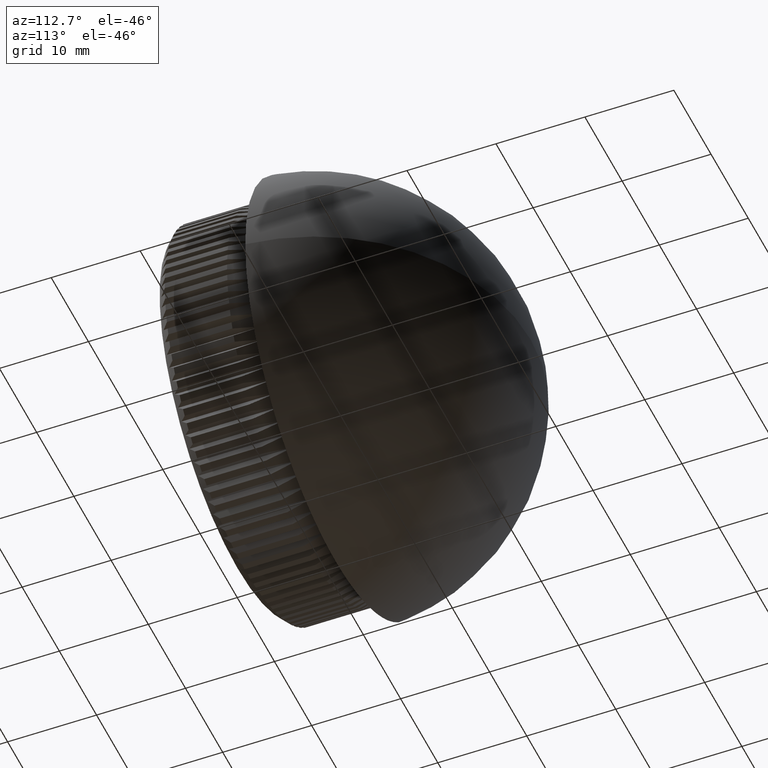
[diagram: clean part render]
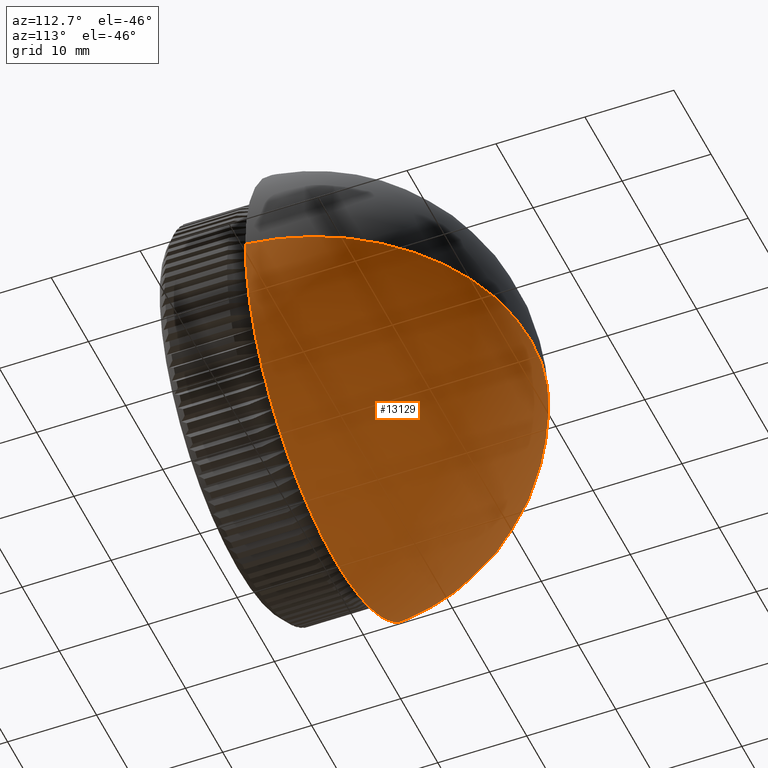
[diagram: same view with one face highlighted and labeled with its STEP entity id]
A machine part, auxiliary view. The second image highlights one B-rep face of the part: STEP entity #13129.
In plain terms, the highlighted spherical surface has radius 24.2551 mm.
Its self-contained STEP definition (entity closure, byte-faithful):
#1187 = CARTESIAN_POINT ( 'NONE',  ( 0.0000000000000000000, 8.744943181818182900, 0.0000000000000000000 ) ) ;
#1738 = ORIENTED_EDGE ( 'NONE', *, *, #23153, .F. ) ;
#2267 = CARTESIAN_POINT ( 'NONE',  ( 24.14999999999999900, 11.00000000000000400, 0.0000000000000000000 ) ) ;
#4345 = DIRECTION ( 'NONE',  ( 1.000000000000000000, 0.0000000000000000000, -1.224646799147353500E-016 ) ) ;
#5169 = AXIS2_PLACEMENT_3D ( 'NONE', #11771, #17149, #4345 ) ;
#5442 = DIRECTION ( 'NONE',  ( 0.0000000000000000000, 0.0000000000000000000, 1.000000000000000000 ) ) ;
#6092 = DIRECTION ( 'NONE',  ( 0.0000000000000000000, 0.0000000000000000000, -1.000000000000000000 ) ) ;
#7009 = DIRECTION ( 'NONE',  ( 1.000000000000000000, 0.0000000000000000000, 0.0000000000000000000 ) ) ;
#7511 = FACE_OUTER_BOUND ( 'NONE', #21706, .T. ) ;
#8710 = CIRCLE ( 'NONE', #13466, 24.14999999999999900 ) ;
#8900 = VERTEX_POINT ( 'NONE', #20112 ) ;
#8994 = EDGE_CURVE ( 'NONE', #18016, #8900, #20872, .T. ) ;
#10179 = DIRECTION ( 'NONE',  ( -1.000000000000000000, 0.0000000000000000000, 0.0000000000000000000 ) ) ;
#11558 = DIRECTION ( 'NONE',  ( -0.0000000000000000000, -1.000000000000000000, -0.0000000000000000000 ) ) ;
#11589 = ORIENTED_EDGE ( 'NONE', *, *, #15237, .T. ) ;
#11771 = CARTESIAN_POINT ( 'NONE',  ( 0.0000000000000000000, 8.744943181818182900, 0.0000000000000000000 ) ) ;
#12726 = CARTESIAN_POINT ( 'NONE',  ( 1.485193884776177600E-015, 33.00000000000000000, 0.0000000000000000000 ) ) ;
#13129 = ADVANCED_FACE ( 'NONE', ( #7511 ), #21475, .T. ) ;
#13466 = AXIS2_PLACEMENT_3D ( 'NONE', #20360, #11558, #6092 ) ;
#13706 = AXIS2_PLACEMENT_3D ( 'NONE', #1187, #17432, #10179 ) ;
#15237 = EDGE_CURVE ( 'NONE', #18016, #23049, #16662, .T. ) ;
#16662 = CIRCLE ( 'NONE', #13706, 24.25505681818181700 ) ;
#17149 = DIRECTION ( 'NONE',  ( 1.224646799147353200E-016, -0.0000000000000000000, 1.000000000000000000 ) ) ;
#17432 = DIRECTION ( 'NONE',  ( 0.0000000000000000000, 0.0000000000000000000, -1.000000000000000000 ) ) ;
#17934 = ORIENTED_EDGE ( 'NONE', *, *, #8994, .F. ) ;
#18016 = VERTEX_POINT ( 'NONE', #12726 ) ;
#20112 = CARTESIAN_POINT ( 'NONE',  ( -24.14999999999999900, 11.00000000000000400, 2.957522019940857900E-015 ) ) ;
#20249 = AXIS2_PLACEMENT_3D ( 'NONE', #23122, #5442, #7009 ) ;
#20360 = CARTESIAN_POINT ( 'NONE',  ( 0.0000000000000000000, 11.00000000000000400, 0.0000000000000000000 ) ) ;
#20872 = CIRCLE ( 'NONE', #5169, 24.25505681818181700 ) ;
#21475 = SPHERICAL_SURFACE ( 'NONE', #20249, 24.25505681818181700 ) ;
#21706 = EDGE_LOOP ( 'NONE', ( #17934, #11589, #1738 ) ) ;
#23049 = VERTEX_POINT ( 'NONE', #2267 ) ;
#23122 = CARTESIAN_POINT ( 'NONE',  ( 0.0000000000000000000, 8.744943181818182900, 0.0000000000000000000 ) ) ;
#23153 = EDGE_CURVE ( 'NONE', #8900, #23049, #8710, .T. ) ;